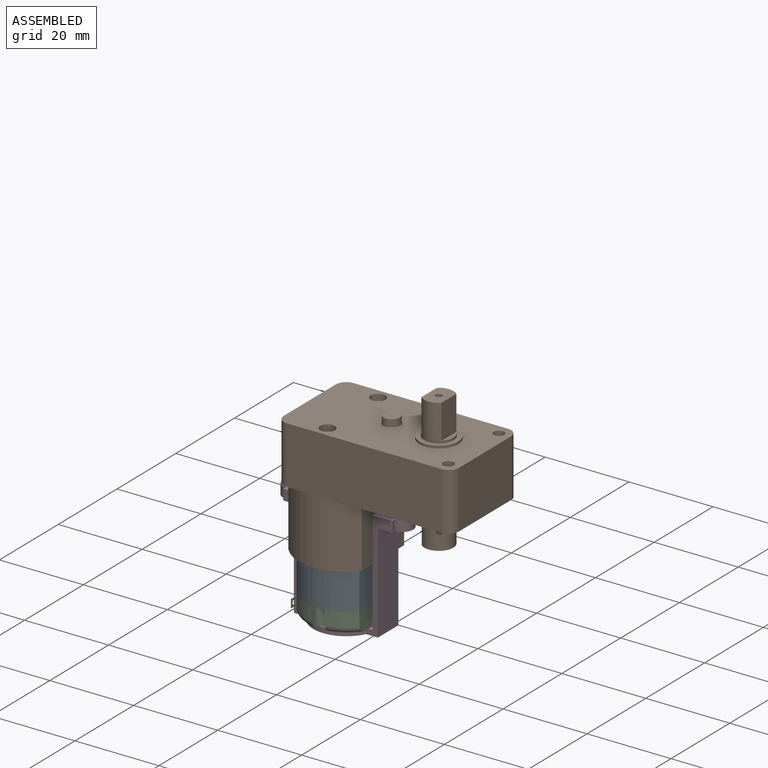
[diagram: assembled view]
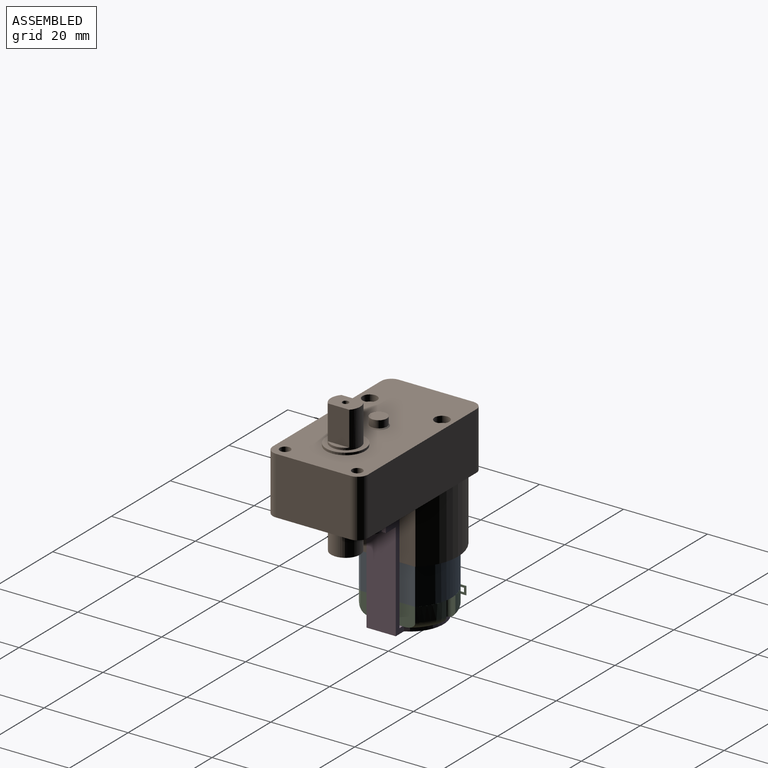
[diagram: assembled view, second angle]
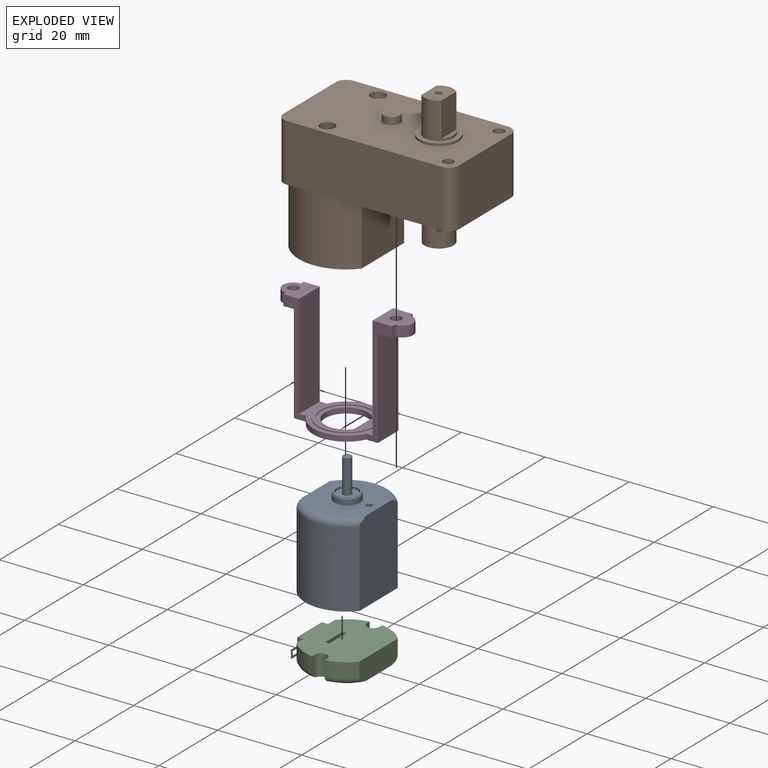
[diagram: exploded view]
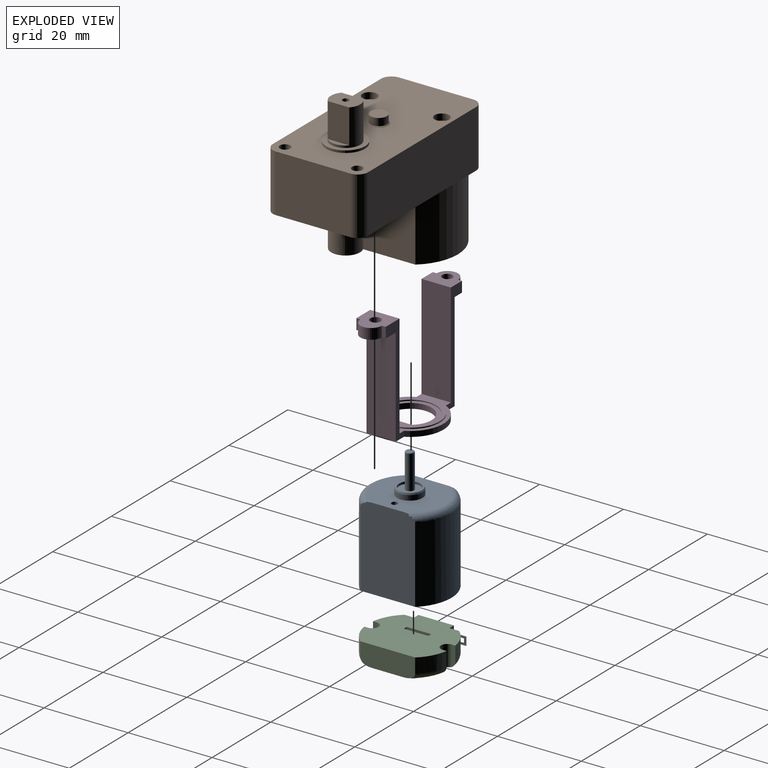
[diagram: exploded view, second angle]
ASSEMBLY  parts=4 mates=3
PART A: 20 faces, bbox 22.4x20x29.9 mm
  f0: plane 19.88x14.97mm, normal (0,0,1), area 266.2mm2, adj f1,f2,f10,f11
  f1: plane 20.61x13.97mm, normal (0,-1,0), area 255.4mm2, adj f0,f10,f11,f13,f15,f18
  f2: plane 20.61x13.97mm, normal (0,1,0), area 255.4mm2, adj f0,f10,f11,f14,f15,f18
  f3: plane 1.47x1.47mm, normal (0,0,-1), area 1.7mm2, adj f4,f5
  f4: torus R=0.73mm, axis (0,0,-1), area 1.1mm2, adj f3,f5,f6
  f5: torus R=0.73mm, axis (0,0,-1), area 1.1mm2, adj f3,f4,f6
  f6: cylinder r=0.98mm len=8.01mm, axis (0,0,1), area 49.5mm2, adj f4,f5,f7
  f7: plane 5.08x5.08mm, normal (0,0,-1), area 17.2mm2, adj f6,f8
  f8: cylinder r=2.54mm len=5.08mm, axis (0,0,-1), area 8.5mm2, adj f7,f9
  f9: plane 5.81x5.81mm, normal (0,0,-1), area 6.2mm2, adj f8,f12
  f10: cylinder r=9.89mm len=18.19mm, axis (0,0,1), area 308.8mm2, adj f0,f1,f2,f13,f14
  f11: cylinder r=9.94mm len=18.19mm, axis (0,0,1), area 308.3mm2, adj f0,f1,f2,f15
  f12: cone r=0mm half-angle=20deg, axis (0,0,1), area 8mm2, adj f9,f16
  f13: torus R=8.39mm, axis (0,0,1), area 21.5mm2, adj f1,f10,f14,f18
  f14: torus R=8.39mm, axis (0,0,1), area 21.5mm2, adj f2,f10,f13,f18
  f15: torus R=8.44mm, axis (0,0,1), area 42.9mm2, adj f1,f2,f11,f18
  f16: cylinder r=3.05mm len=6.1mm, axis (0,0,1), area 23mm2, adj f12,f18
  f17: plane 1.46x1.46mm, normal (0,0,-1), area 1.7mm2, adj f19
  f18: plane 17.59x15.69mm, normal (0,0,-1), area 182.6mm2, adj f1,f2,f13,f14,f15,f16,f19
  f19: cylinder r=0.73mm len=8.26mm, axis (0,0,-1), area 37.9mm2, adj f17,f18
PART B: 73 faces, bbox 47.3x22.7x38.6 mm
  f0: plane 1.5x1.5mm, normal (0,0,-1), area 1.8mm2, adj f1
  f1: cylinder r=0.75mm len=10mm, axis (0,0,-1), area 47.1mm2, adj f0,f2
  f2: plane 6.9x5.66mm, normal (0,0,-1), area 31.1mm2, adj f1,f3,f4
  f3: plane 8.94x5.29mm, normal (-1,0,0), area 47.3mm2, adj f2,f4,f6
  f4: cylinder r=3.45mm len=8.94mm, axis (0,0,1), area 139.9mm2, adj f2,f3,f6
  f5: plane 2.92x0.03mm, normal (-1,0,0), area 0.1mm2, adj f6,f11,f12,f16
  f6: plane 6.99x6.99mm, normal (0,0,-1), area 5.5mm2, adj f3,f4,f5,f7,f11,f12
  f7: plane 2.92x0.03mm, normal (-1,0,0), area 0.1mm2, adj f6,f11,f12,f16
  f8: plane 6.1x6.1mm, normal (0,0,-1), area 29.2mm2, adj f13
  f9: plane 1.5x1.5mm, normal (0,0,1), area 1.8mm2, adj f14
  f10: plane 2x2mm, normal (0,0,-1), area 3.1mm2, adj f15
  f11: cylinder r=3.56mm len=5.47mm, axis (0,0,1), area 18.2mm2, adj f5,f6,f7,f16
  f12: cylinder r=3.49mm len=6.99mm, axis (0,0,1), area 46.1mm2, adj f5,f6,f7,f16
  f13: cylinder r=3.05mm len=14.45mm, axis (0,0,-1), area 276.6mm2, adj f8,f17
  f14: cylinder r=0.75mm len=9.25mm, axis (0,0,-1), area 43.6mm2, adj f9,f23
  f15: cylinder r=1mm len=5.08mm, axis (0,0,1), area 31.9mm2, adj f10,f26
  f16: plane 9.78x9.78mm, normal (0,0,-1), area 36.7mm2, adj f5,f7,f11,f12,f27
  f17: plane 20.37x15.1mm, normal (0,0,-1), area 247.3mm2, adj f13,f19,f28,f29,f30
  f18: plane 15.1x3.37mm, normal (0,0,-1), area 0.3mm2, adj f19,f31
  f19: cylinder r=10.21mm len=15.1mm, axis (0,0,1), area 75.5mm2, adj f17,f18,f31
  f20: plane 2.5x2.5mm, normal (0,0,1), area 4.9mm2, adj f34
  f21: plane 5.23x1.17mm, normal (0,0,1), area 4.2mm2, adj f22,f36
  f22: plane 8.15x5.23mm, normal (-1,0,0), area 42.6mm2, adj f21,f23,f36
  f23: plane 7x4.73mm, normal (0,0,1), area 28.6mm2, adj f14,f22,f24,f36
  f24: plane 8.15x5.09mm, normal (1,0,0), area 41.5mm2, adj f23,f25,f36
  f25: plane 5.09x1.1mm, normal (0,0,1), area 3.9mm2, adj f24,f36
  f26: plane 5.46x4.51mm, normal (0,0,-1), area 19.4mm2, adj f15,f37,f38,f39,f40
  f27: cylinder r=4.89mm len=9.78mm, axis (0,0,1), area 82.1mm2, adj f16,f41
  f28: plane 13.67x11.22mm, normal (-1,0,0), area 153.3mm2, adj f17,f29,f31,f43
  f29: cylinder r=10.15mm len=15.1mm, axis (0,0,1), area 191mm2, adj f17,f28,f30,f43
  f30: plane 13.67x11.22mm, normal (1,0,0), area 153.3mm2, adj f17,f29,f31,f43
  f31: cylinder r=10.15mm len=15.66mm, axis (0,0,1), area 266.6mm2, adj f18,f19,f28,f30,f43
  f32: cylinder r=1mm len=5.08mm, axis (0,0,1), area 31.9mm2, adj f46,f48
  f33: cylinder r=2.29mm len=5.08mm, axis (0,0,1), area 32.6mm2, adj f46,f47,f48,f49
  f34: cylinder r=1.25mm len=12.18mm, axis (0,0,-1), area 95.6mm2, adj f20,f51
  f35: plane 3.94x3.94mm, normal (0,0,1), area 12.2mm2, adj f52
  f36: cylinder r=3.5mm len=8.7mm, axis (0,0,-1), area 96.7mm2, adj f21,f22,f23,f24,f25,f53
  f37: plane 5.08x3.56mm, normal (0,1,0), area 18.1mm2, adj f26,f38,f40,f54
  f38: cylinder r=2.29mm len=5.08mm, axis (0,0,1), area 32.6mm2, adj f26,f37,f39,f54
  f39: plane 5.08x3.56mm, normal (0,-1,0), area 18.1mm2, adj f26,f38,f40,f54
  f40: plane 15.66x14.52mm, normal (1,0,0), area 204.6mm2, adj f26,f37,f39,f42,f43,f44,f54
  f41: cone r=0mm half-angle=45deg, axis (0,0,1), area 11.1mm2, adj f27,f54
  f42: cylinder r=11.3mm len=17.4mm, axis (0,0,1), area 311mm2, adj f40,f43,f50,f54,f58
  f43: plane 22.7x17.4mm, normal (0,0,-1), area 74.8mm2, adj f28,f29,f30,f31,f40,f42,f44,f58
  f44: cylinder r=11.3mm len=17.4mm, axis (0,0,1), area 311mm2, adj f40,f43,f45,f54,f58
  f45: plane 8.7x4.09mm, normal (0,0,-1), area 9.5mm2, adj f44,f56,f57,f58
  f46: plane 5.46x4.51mm, normal (0,0,-1), area 19.4mm2, adj f32,f33,f47,f49,f58
  f47: plane 5.08x3.56mm, normal (0,-1,0), area 18.1mm2, adj f33,f46,f48,f58
  f48: plane 5.46x4.51mm, normal (0,0,1), area 19.4mm2, adj f32,f33,f47,f49,f58
  f49: plane 5.08x3.56mm, normal (0,1,0), area 18.1mm2, adj f33,f46,f48,f58
  f50: plane 8.7x4.09mm, normal (0,0,-1), area 9.5mm2, adj f42,f58,f59,f60
  f51: plane 3.5x3.5mm, normal (0,0,1), area 4.7mm2, adj f34,f63
  f52: cylinder r=1.97mm len=3.94mm, axis (0,0,-1), area 21.6mm2, adj f35,f64
  f53: plane 9.27x9.27mm, normal (0,0,1), area 29mm2, adj f36,f65
  f54: plane 33.1x22.7mm, normal (0,0,-1), area 457.6mm2, adj f37,f38,f39,f40,f41,f42,f44,f55
  f55: cylinder r=2.5mm len=13.7mm, axis (0,0,-1), area 53.8mm2, adj f54,f56,f62,f68
  f56: plane 36.8x13.7mm, normal (0,1,0), area 504.2mm2, adj f45,f54,f55,f57,f68
  f57: cylinder r=2.5mm len=13.7mm, axis (0,0,-1), area 53.8mm2, adj f45,f56,f58,f68
  f58: plane 29.36x17.7mm, normal (-1,0,0), area 447mm2, adj f42,f43,f44,f45,f46,f47,f48,f49
  f59: cylinder r=2.5mm len=13.7mm, axis (0,0,-1), area 53.8mm2, adj f50,f58,f60,f68
  f60: plane 36.8x13.7mm, normal (0,-1,0), area 504.2mm2, adj f50,f54,f59,f61,f68
  f61: cylinder r=2.5mm len=13.7mm, axis (0,0,-1), area 53.8mm2, adj f54,f60,f62,f68
  f62: plane 17.7x13.7mm, normal (1,0,0), area 242.5mm2, adj f54,f55,f61,f68
  f63: cylinder r=1.75mm len=3.5mm, axis (0,0,1), area 16.8mm2, adj f51,f68
  f64: cone r=0mm half-angle=45deg, axis (0,0,-1), area 4.7mm2, adj f52,f68
  f65: cylinder r=4.64mm len=9.27mm, axis (0,0,-1), area 16mm2, adj f53,f68
  f66: cylinder r=1.25mm len=13.7mm, axis (0,0,-1), area 107.6mm2, adj f54,f68
  f67: cylinder r=1.25mm len=13.7mm, axis (0,0,-1), area 107.6mm2, adj f54,f68
  f68: plane 41.8x22.7mm, normal (0,0,1), area 831.5mm2, adj f55,f56,f57,f58,f59,f60,f61,f62
  f69: cylinder r=1.75mm len=3.5mm, axis (0,0,1), area 16.8mm2, adj f68,f70
  f70: plane 3.5x3.5mm, normal (0,0,1), area 4.7mm2, adj f69,f72
  f71: plane 2.5x2.5mm, normal (0,0,1), area 4.9mm2, adj f72
  f72: cylinder r=1.25mm len=12.18mm, axis (0,0,-1), area 95.6mm2, adj f70,f71
PART C: 55 faces, bbox 21.6x20.6x8.8 mm
  f0: plane 13.05x5mm, normal (0,-1,0), area 63.6mm2, adj f2,f29,f30,f37,f38,f47
  f1: plane 4.99x2.31mm, normal (0,1,0), area 10.7mm2, adj f2,f43,f44,f48
  f2: plane 19.63x16.47mm, normal (0,0,-1), area 260mm2, adj f0,f1,f3,f29,f30,f31,f32,f33
  f3: plane 4.99x2.31mm, normal (0,1,0), area 10.7mm2, adj f2,f50,f51,f54
  f4: plane 1.47x1.47mm, normal (0,0,1), area 1.7mm2, adj f5,f6
  f5: torus R=0.73mm, axis (0,0,1), area 1.1mm2, adj f4,f6,f7
  f6: torus R=0.73mm, axis (0,0,1), area 1.1mm2, adj f4,f5,f7
  f7: cylinder r=0.98mm len=1.97mm, axis (0,0,-1), area 7.7mm2, adj f5,f6,f15
  f8: plane 3.83x0.08mm, normal (0,0,-1), area 0.3mm2, adj f9,f20,f21,f44
  f9: plane 2x0.08mm, normal (1,0,0), area 0.2mm2, adj f8,f10,f20,f21
  f10: plane 3.83x0.08mm, normal (0,0,1), area 0.3mm2, adj f9,f20,f21,f44
  f11: plane 1x0.08mm, normal (1,0,0), area 0.1mm2, adj f12,f14,f20,f21
  f12: plane 1.93x0.08mm, normal (0,0,-1), area 0.2mm2, adj f11,f13,f20,f21
  f13: plane 1x0.08mm, normal (-1,0,0), area 0.1mm2, adj f12,f14,f20,f21
  f14: plane 1.93x0.08mm, normal (0,0,1), area 0.2mm2, adj f11,f13,f20,f21
  f15: plane 8.93x7.78mm, normal (0,0,1), area 48.7mm2, adj f7,f16,f17,f18,f19,f32,f33,f34
  f16: cylinder r=0.5mm len=6.35mm, axis (-1,0,0), area 4.8mm2, adj f15,f17,f19,f39
  f17: torus R=4.45mm, axis (0,0,1), area 3.2mm2, adj f15,f16,f18,f40
  f18: torus R=4.45mm, axis (0,0,1), area 11.8mm2, adj f15,f17,f19,f40
  f19: torus R=4.45mm, axis (0,0,1), area 3.2mm2, adj f15,f16,f18,f40
  f20: plane 3.83x2mm, normal (0,-1,0), area 5.7mm2, adj f8,f9,f10,f11,f12,f13,f14,f44
  f21: plane 3.83x2mm, normal (0,1,0), area 5.7mm2, adj f8,f9,f10,f11,f12,f13,f14,f44
  f22: plane 3.83x0.08mm, normal (0,0,1), area 0.3mm2, adj f23,f45,f46,f50
  f23: plane 2x0.08mm, normal (-1,0,0), area 0.2mm2, adj f22,f24,f45,f46
  f24: plane 3.83x0.08mm, normal (0,0,-1), area 0.3mm2, adj f23,f45,f46,f50
  f25: plane 1x0.08mm, normal (-1,0,0), area 0.1mm2, adj f26,f28,f45,f46
  f26: plane 1.93x0.08mm, normal (0,0,1), area 0.2mm2, adj f25,f27,f45,f46
  f27: plane 1x0.08mm, normal (1,0,0), area 0.1mm2, adj f26,f28,f45,f46
  f28: plane 1.93x0.08mm, normal (0,0,-1), area 0.2mm2, adj f25,f27,f45,f46
  f29: cylinder r=9.93mm len=5.99mm, axis (0,0,-1), area 24.1mm2, adj f0,f2,f36,f38
  f30: cylinder r=9.93mm len=5.99mm, axis (0,0,-1), area 24.1mm2, adj f0,f2,f31,f37
  f31: plane 4.92x0.96mm, normal (0,1,0), area 3.9mm2, adj f2,f30,f37,f41
  f32: plane 7x1mm, normal (-1,0,0), area 7mm2, adj f2,f15,f33,f35
  f33: plane 7x5.84mm, normal (0,1,0), area 40.9mm2, adj f2,f15,f32,f34
  f34: plane 7x1mm, normal (1,0,0), area 7mm2, adj f2,f15,f33,f35
  f35: plane 7x5.84mm, normal (0,-1,0), area 40.9mm2, adj f2,f15,f32,f34
  f36: plane 4.92x0.96mm, normal (0,1,0), area 3.9mm2, adj f2,f29,f38,f53
  f37: torus R=8.38mm, axis (0,0,-1), area 17.5mm2, adj f0,f30,f31,f41,f47
  f38: torus R=8.38mm, axis (0,0,-1), area 17.5mm2, adj f0,f29,f36,f47,f53
  f39: plane 6.35x1.5mm, normal (0,-1,0), area 9.5mm2, adj f16,f40,f47
  f40: cylinder r=4.95mm len=9.91mm, axis (0,0,-1), area 36.3mm2, adj f17,f18,f19,f39,f47
  f41: cylinder r=1.5mm len=5mm, axis (0,0,1), area 23.5mm2, adj f2,f31,f37,f42,f47,f48
  f42: plane 4.92x0.96mm, normal (0,-1,0), area 3.9mm2, adj f2,f41,f43,f48
  f43: cylinder r=9.93mm len=5.99mm, axis (0,0,-1), area 24.1mm2, adj f1,f2,f42,f48
  f44: plane 5.29x1.8mm, normal (1,0,0), area 6.8mm2, adj f1,f2,f8,f10,f20,f21,f48,f49
  f45: plane 3.83x2mm, normal (0,-1,0), area 5.7mm2, adj f22,f23,f24,f25,f26,f27,f28,f50
  f46: plane 3.83x2mm, normal (0,1,0), area 5.7mm2, adj f22,f23,f24,f25,f26,f27,f28,f50
  f47: plane 16.75x16.07mm, normal (0,0,1), area 140.4mm2, adj f0,f37,f38,f39,f40,f41,f48,f53
  f48: torus R=8.38mm, axis (0,0,-1), area 22.3mm2, adj f1,f41,f42,f43,f44,f47,f49,f54
  f49: plane 8.44x4.88mm, normal (0,1,0), area 39.1mm2, adj f2,f44,f48,f50,f54
  f50: plane 5.29x1.8mm, normal (-1,0,0), area 6.8mm2, adj f2,f3,f22,f24,f45,f46,f49,f54
  f51: cylinder r=9.93mm len=5.99mm, axis (0,0,-1), area 24.1mm2, adj f2,f3,f52,f54
  f52: plane 4.92x0.96mm, normal (0,-1,0), area 3.9mm2, adj f2,f51,f53,f54
  f53: cylinder r=1.5mm len=5mm, axis (0,0,1), area 23.5mm2, adj f2,f36,f38,f47,f52,f54
  f54: torus R=8.38mm, axis (0,0,-1), area 22.3mm2, adj f3,f47,f48,f49,f50,f51,f52,f53
PART D: 30 faces, bbox 31.1x15.9x26 mm
  f0: cylinder r=2.54mm len=5.08mm, axis (0,0,-1), area 20.2mm2, adj f5,f6,f7,f8
  f1: cylinder r=1.22mm len=2.54mm, axis (0,0,1), area 19.5mm2, adj f6,f8
  f2: cylinder r=1.27mm len=2.54mm, axis (0,0,1), area 20.2mm2, adj f9,f10
  f3: cylinder r=2.54mm len=5.08mm, axis (0,0,-1), area 20.2mm2, adj f4,f9,f10,f11
  f4: plane 2.54x0.95mm, normal (1,0,0), area 2.4mm2, adj f3,f9,f10,f15
  f5: plane 2.54x0.95mm, normal (-1,0,0), area 2.4mm2, adj f0,f6,f8,f17
  f6: plane 6.99x5.08mm, normal (0,0,-1), area 23.2mm2, adj f0,f1,f5,f7,f17,f18,f19
  f7: plane 2.54x0.95mm, normal (-1,0,0), area 2.4mm2, adj f0,f6,f8,f19
  f8: plane 6.99x6.35mm, normal (0,0,1), area 32mm2, adj f0,f1,f5,f7,f13,f17,f19
  f9: plane 6.99x5.97mm, normal (0,0,-1), area 29mm2, adj f2,f3,f4,f11,f14,f15,f21
  f10: plane 7.24x6.99mm, normal (0,0,1), area 37.9mm2, adj f2,f3,f4,f11,f12,f15,f21
  f11: plane 2.54x0.95mm, normal (1,0,0), area 2.4mm2, adj f3,f9,f10,f21
  f12: plane 24.77x6.99mm, normal (-1,0,0), area 173mm2, adj f10,f15,f21,f22
  f13: plane 24.77x6.99mm, normal (1,0,0), area 173mm2, adj f8,f17,f19,f22
  f14: plane 23.5x6.99mm, normal (1,0,0), area 164.1mm2, adj f9,f15,f21,f23
  f15: plane 26.04x6.22mm, normal (0,1,0), area 43.7mm2, adj f4,f9,f10,f12,f14,f16,f22,f23
  f16: cylinder r=7.94mm len=14.26mm, axis (0,0,-1), area 22.5mm2, adj f15,f17,f22,f23
  f17: plane 26.04x5.51mm, normal (0,1,0), area 41.7mm2, adj f5,f6,f8,f13,f16,f18,f22,f23
  f18: plane 23.5x6.99mm, normal (-1,0,0), area 164.1mm2, adj f6,f17,f19,f23
  f19: plane 26.04x5.51mm, normal (0,-1,0), area 41.7mm2, adj f6,f7,f8,f13,f18,f20,f22,f23
  f20: cylinder r=7.94mm len=14.26mm, axis (0,0,-1), area 22.5mm2, adj f19,f21,f22,f23
  f21: plane 26.04x6.22mm, normal (0,-1,0), area 43.7mm2, adj f9,f10,f11,f12,f14,f20,f22,f23
  f22: plane 17.48x15.88mm, normal (0,0,1), area 62.3mm2, adj f12,f13,f15,f16,f17,f19,f20,f21
  f23: plane 20.02x15.88mm, normal (0,0,-1), area 154.3mm2, adj f14,f15,f16,f17,f18,f19,f20,f21
  f24: cylinder r=6.92mm len=13.84mm, axis (0,0,-1), area 11mm2, adj f22,f27
  f25: plane 6.35x1.27mm, normal (-1,0,0), area 8.1mm2, adj f23,f26,f28
  f26: cylinder r=5.08mm len=10.16mm, axis (0,0,-1), area 31.8mm2, adj f23,f25,f28
  f27: plane 13.84x13.84mm, normal (0,0,1), area 36.2mm2, adj f24,f29
  f28: plane 12.07x12.07mm, normal (0,0,1), area 38.1mm2, adj f25,f26,f29
  f29: cylinder r=6.03mm len=12.07mm, axis (0,0,-1), area 9.6mm2, adj f27,f28
PLACE A rot(axis=(0.71,-0.71,0),180deg) t=(8.92,11.35,-24.85)mm
PLACE B at identity fixed
PLACE C rot(axis=(0.71,-0.71,0),180deg) t=(8.92,11.35,-24.85)mm
PLACE D t=(-1.35,14.84,-31.12)mm
MATE fastened D.f2 <-> B.f15  axis (0,0,1) through (20.58,11.35,-5.08)mm
MATE fastened C.f2 <-> A.f0  axis (0,0,-1) through (16.4,17.88,-24.85)mm
MATE fastened D.f28 <-> C.f47  axis (0,0,1) through (12.72,11.35,-29.85)mm
